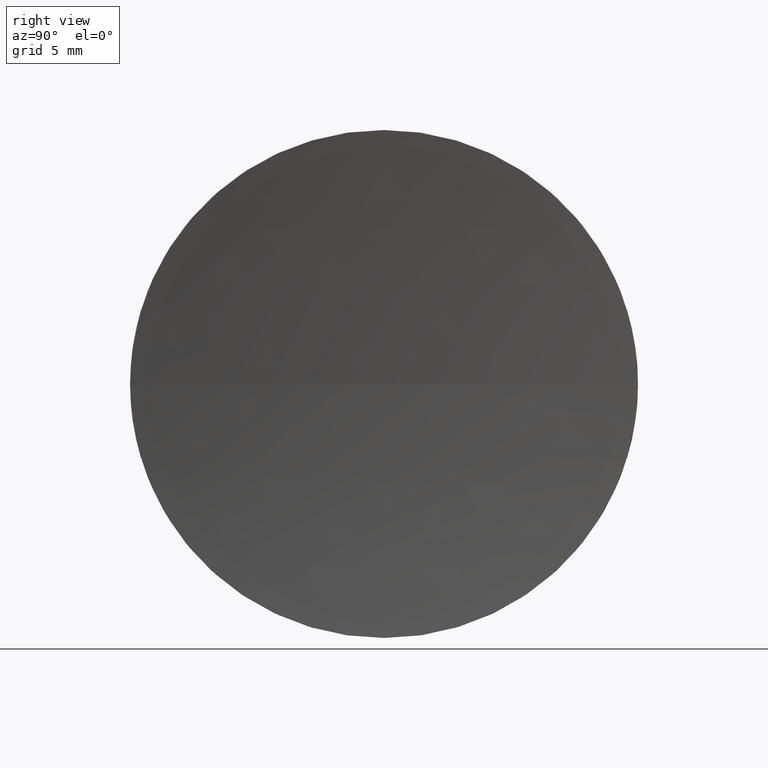
[diagram: clean part render]
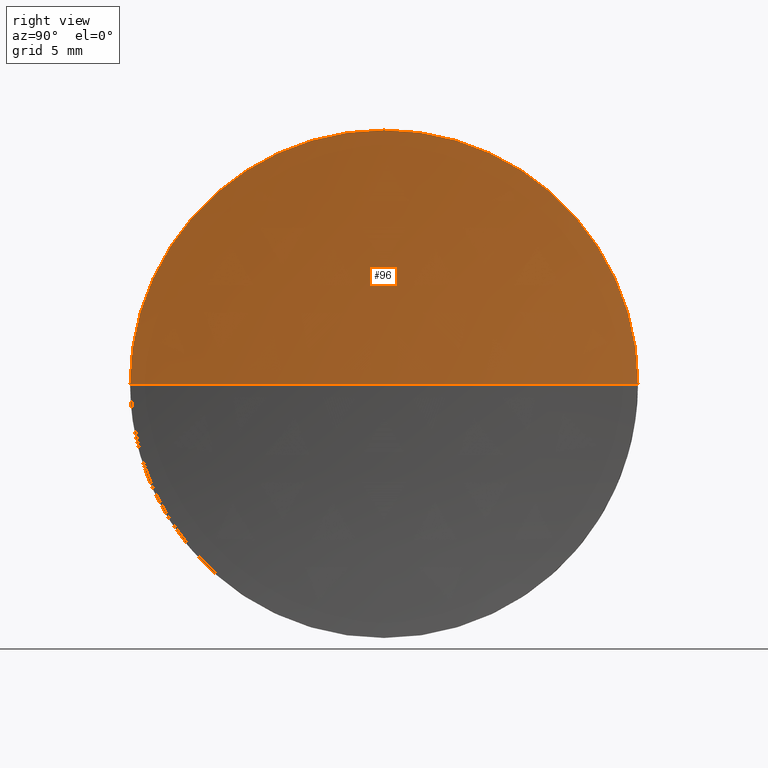
[diagram: same view with one face highlighted and labeled with its STEP entity id]
A machine part, right view. The second image highlights one B-rep face of the part: STEP entity #96.
In plain terms, the highlighted spherical surface has radius 100 mm.
Its self-contained STEP definition (entity closure, byte-faithful):
#1 = DIRECTION ( 'NONE',  ( 0.0000000000000000000, -1.224646799147353200E-016, 1.000000000000000000 ) ) ;
#15 = ORIENTED_EDGE ( 'NONE', *, *, #181, .T. ) ;
#16 = CIRCLE ( 'NONE', #53, 12.50000000000002500 ) ;
#23 = DIRECTION ( 'NONE',  ( 0.0000000000000000000, 0.0000000000000000000, 1.000000000000000000 ) ) ;
#24 = CIRCLE ( 'NONE', #162, 99.99999999999998600 ) ;
#25 = CARTESIAN_POINT ( 'NONE',  ( 121.8769810645712300, 69.37802112337243400, 0.0000000000000000000 ) ) ;
#26 = DIRECTION ( 'NONE',  ( 0.0000000000000000000, 0.0000000000000000000, 1.000000000000000000 ) ) ;
#27 = CARTESIAN_POINT ( 'NONE',  ( 121.8769810645712300, 69.37802112337243400, 0.0000000000000000000 ) ) ;
#31 = CARTESIAN_POINT ( 'NONE',  ( 121.8769810645712300, 69.37802112337243400, 12.50000000000002500 ) ) ;
#34 = DIRECTION ( 'NONE',  ( 0.0000000000000000000, -1.000000000000000000, 0.0000000000000000000 ) ) ;
#35 = AXIS2_PLACEMENT_3D ( 'NONE', #161, #128, #52 ) ;
#37 = DIRECTION ( 'NONE',  ( -1.000000000000000000, -0.0000000000000000000, -0.0000000000000000000 ) ) ;
#40 = VERTEX_POINT ( 'NONE', #43 ) ;
#43 = CARTESIAN_POINT ( 'NONE',  ( 121.0926552294933700, 69.37802112337244900, 0.0000000000000000000 ) ) ;
#46 = CIRCLE ( 'NONE', #142, 12.50000000000002500 ) ;
#48 = EDGE_CURVE ( 'NONE', #124, #40, #24, .T. ) ;
#52 = DIRECTION ( 'NONE',  ( -1.000000000000000000, 0.0000000000000000000, 0.0000000000000000000 ) ) ;
#53 = AXIS2_PLACEMENT_3D ( 'NONE', #25, #37, #26 ) ;
#65 = VERTEX_POINT ( 'NONE', #31 ) ;
#68 = EDGE_LOOP ( 'NONE', ( #170, #88, #148, #15 ) ) ;
#72 = DIRECTION ( 'NONE',  ( 0.0000000000000000000, 0.0000000000000000000, 1.000000000000000000 ) ) ;
#79 = VERTEX_POINT ( 'NONE', #149 ) ;
#88 = ORIENTED_EDGE ( 'NONE', *, *, #174, .F. ) ;
#96 = ADVANCED_FACE ( 'NONE', ( #169 ), #179, .F. ) ;
#100 = CIRCLE ( 'NONE', #35, 99.99999999999998600 ) ;
#111 = CARTESIAN_POINT ( 'NONE',  ( 221.0926552294933700, 69.37802112337244900, 0.0000000000000000000 ) ) ;
#123 = AXIS2_PLACEMENT_3D ( 'NONE', #111, #23, #34 ) ;
#124 = VERTEX_POINT ( 'NONE', #178 ) ;
#128 = DIRECTION ( 'NONE',  ( 0.0000000000000000000, 0.0000000000000000000, -1.000000000000000000 ) ) ;
#134 = EDGE_CURVE ( 'NONE', #79, #65, #16, .T. ) ;
#142 = AXIS2_PLACEMENT_3D ( 'NONE', #27, #184, #72 ) ;
#148 = ORIENTED_EDGE ( 'NONE', *, *, #134, .F. ) ;
#149 = CARTESIAN_POINT ( 'NONE',  ( 121.8769810645712300, 56.87802112337242700, 0.0000000000000000000 ) ) ;
#161 = CARTESIAN_POINT ( 'NONE',  ( 221.0926552294933700, 69.37802112337244900, 0.0000000000000000000 ) ) ;
#162 = AXIS2_PLACEMENT_3D ( 'NONE', #166, #1, #168 ) ;
#166 = CARTESIAN_POINT ( 'NONE',  ( 221.0926552294933700, 69.37802112337244900, 0.0000000000000000000 ) ) ;
#168 = DIRECTION ( 'NONE',  ( 0.0000000000000000000, -1.000000000000000000, -1.224646799147353200E-016 ) ) ;
#169 = FACE_OUTER_BOUND ( 'NONE', #68, .T. ) ;
#170 = ORIENTED_EDGE ( 'NONE', *, *, #48, .F. ) ;
#174 = EDGE_CURVE ( 'NONE', #65, #124, #46, .T. ) ;
#178 = CARTESIAN_POINT ( 'NONE',  ( 121.8769810645712300, 81.87802112337244900, 1.530808498934192500E-015 ) ) ;
#179 = SPHERICAL_SURFACE ( 'NONE', #123, 99.99999999999998600 ) ;
#181 = EDGE_CURVE ( 'NONE', #79, #40, #100, .T. ) ;
#184 = DIRECTION ( 'NONE',  ( -1.000000000000000000, -0.0000000000000000000, -0.0000000000000000000 ) ) ;